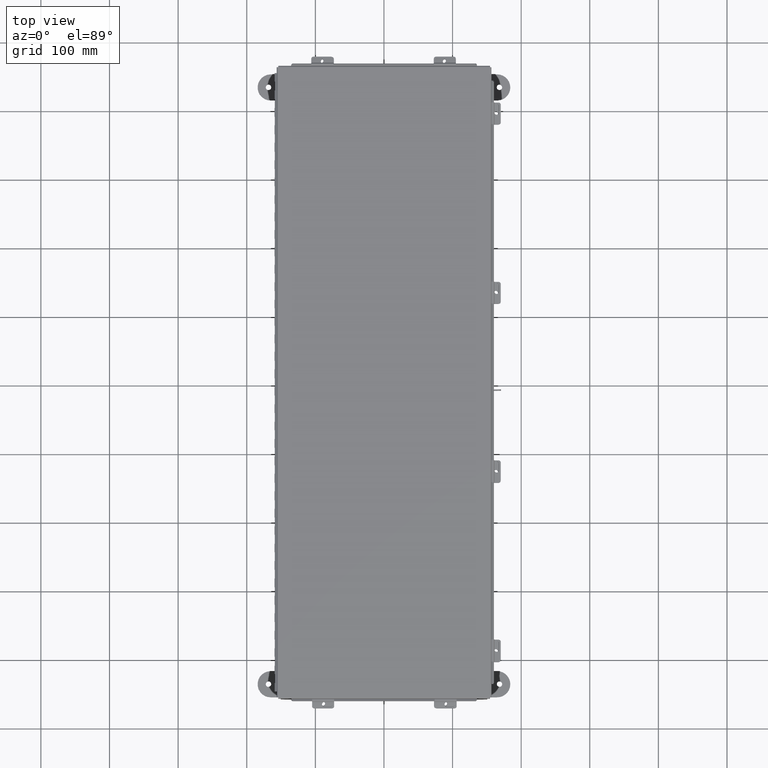
[diagram: clean part render]
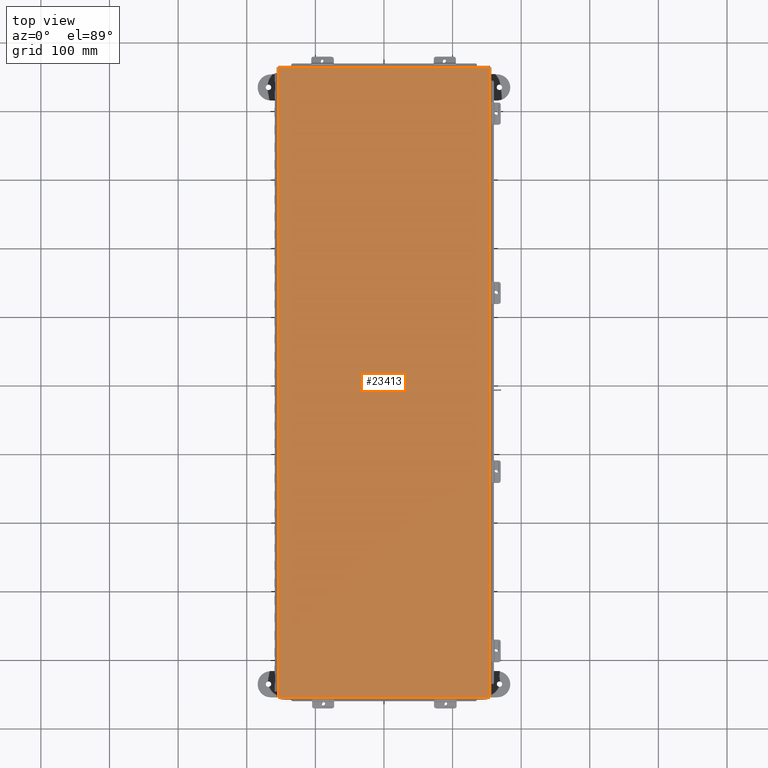
[diagram: same view with one face highlighted and labeled with its STEP entity id]
A machine part, top view. The second image highlights one B-rep face of the part: STEP entity #23413.
In plain terms, the highlighted planar face has unit normal (-0, 0, 1).
Its self-contained STEP definition (entity closure, byte-faithful):
#1232 = LINE ( 'NONE', #12624, #5905 ) ;
#2018 = EDGE_CURVE ( 'NONE', #14845, #9915, #1232, .T. ) ;
#2251 = LINE ( 'NONE', #23641, #25774 ) ;
#2289 = VECTOR ( 'NONE', #4689, 39.37007874015748100 ) ;
#4689 = DIRECTION ( 'NONE',  ( -5.315277860228140500E-030, -1.000000000000000000, -1.597443333072548900E-029 ) ) ;
#4740 = EDGE_CURVE ( 'NONE', #9915, #14901, #20464, .T. ) ;
#5067 = DIRECTION ( 'NONE',  ( 8.490855181249487700E-059, -1.597443333072548900E-029, -1.000000000000000000 ) ) ;
#5241 = CARTESIAN_POINT ( 'NONE',  ( 6.074478932188144500, -18.06855000000000200, -0.07470000000000015500 ) ) ;
#5905 = VECTOR ( 'NONE', #10376, 39.37007874015748100 ) ;
#6931 = ORIENTED_EDGE ( 'NONE', *, *, #4740, .T. ) ;
#7533 = FACE_OUTER_BOUND ( 'NONE', #20803, .T. ) ;
#7724 = CARTESIAN_POINT ( 'NONE',  ( 6.068550000000009000, -18.06855000000000200, -0.07470000000000015500 ) ) ;
#9727 = DIRECTION ( 'NONE',  ( -1.000000000000000000, -5.315277860228091400E-030, -0.0000000000000000000 ) ) ;
#9915 = VERTEX_POINT ( 'NONE', #19653 ) ;
#10044 = DIRECTION ( 'NONE',  ( 5.315277860228140500E-030, 1.000000000000000000, 1.597443333072548900E-029 ) ) ;
#10376 = DIRECTION ( 'NONE',  ( 1.000000000000000000, 5.315277860228091400E-030, -0.0000000000000000000 ) ) ;
#11346 = CARTESIAN_POINT ( 'NONE',  ( 6.068550000000009000, 18.07447893218813200, -0.07469999999999797600 ) ) ;
#11994 = VERTEX_POINT ( 'NONE', #14147 ) ;
#12008 = EDGE_CURVE ( 'NONE', #14901, #11994, #15623, .T. ) ;
#12624 = CARTESIAN_POINT ( 'NONE',  ( -6.074478932188126700, 18.06854999999999500, -0.07470000000000015500 ) ) ;
#14147 = CARTESIAN_POINT ( 'NONE',  ( -6.068549999999991200, -18.06855000000000500, -0.07470000000000015500 ) ) ;
#14845 = VERTEX_POINT ( 'NONE', #25714 ) ;
#14901 = VERTEX_POINT ( 'NONE', #7724 ) ;
#15623 = LINE ( 'NONE', #5241, #27804 ) ;
#16583 = ORIENTED_EDGE ( 'NONE', *, *, #22345, .T. ) ;
#17050 = ORIENTED_EDGE ( 'NONE', *, *, #12008, .T. ) ;
#19653 = CARTESIAN_POINT ( 'NONE',  ( 6.068550000000009000, 18.06854999999999800, -0.07469999999999797600 ) ) ;
#20464 = LINE ( 'NONE', #11346, #2289 ) ;
#20803 = EDGE_LOOP ( 'NONE', ( #28039, #6931, #17050, #16583 ) ) ;
#20982 = DIRECTION ( 'NONE',  ( -1.000000000000000000, -5.315277860228091400E-030, 0.0000000000000000000 ) ) ;
#22345 = EDGE_CURVE ( 'NONE', #11994, #14845, #2251, .T. ) ;
#23166 = PLANE ( 'NONE',  #26879 ) ;
#23413 = ADVANCED_FACE ( 'NONE', ( #7533 ), #23166, .T. ) ;
#23641 = CARTESIAN_POINT ( 'NONE',  ( -6.068549999999991200, -18.07447893218813900, -0.07470000000000015500 ) ) ;
#25714 = CARTESIAN_POINT ( 'NONE',  ( -6.068549999999991200, 18.06854999999999500, -0.07470000000000015500 ) ) ;
#25774 = VECTOR ( 'NONE', #10044, 39.37007874015748100 ) ;
#26879 = AXIS2_PLACEMENT_3D ( 'NONE', #27770, #5067, #20982 ) ;
#27770 = CARTESIAN_POINT ( 'NONE',  ( 0.0000000000000000000, 0.0000000000000000000, -0.07470000000000015500 ) ) ;
#27804 = VECTOR ( 'NONE', #9727, 39.37007874015748100 ) ;
#28039 = ORIENTED_EDGE ( 'NONE', *, *, #2018, .T. ) ;